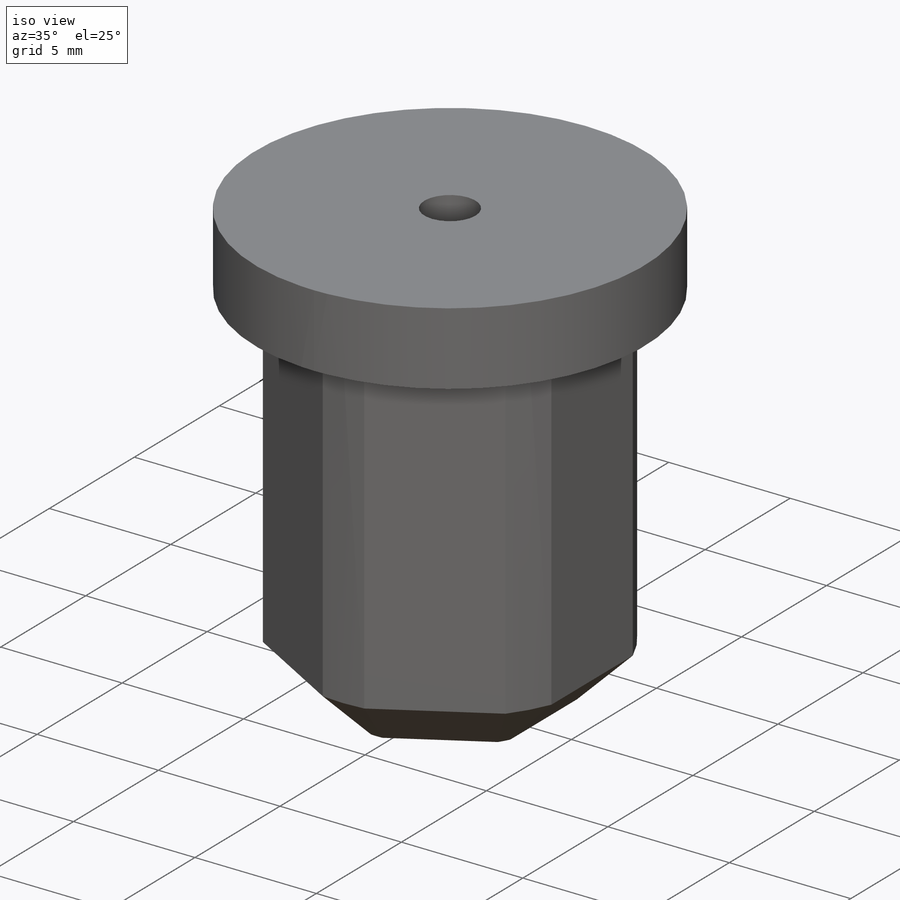
[diagram: iso view]
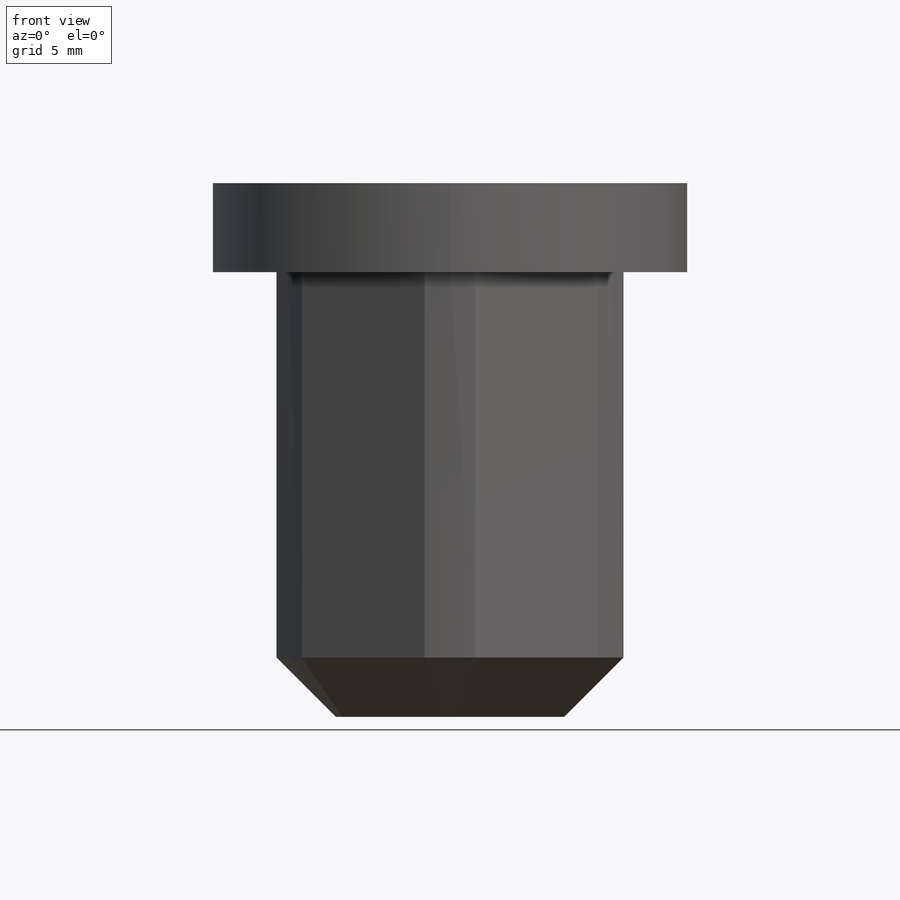
[diagram: front view]
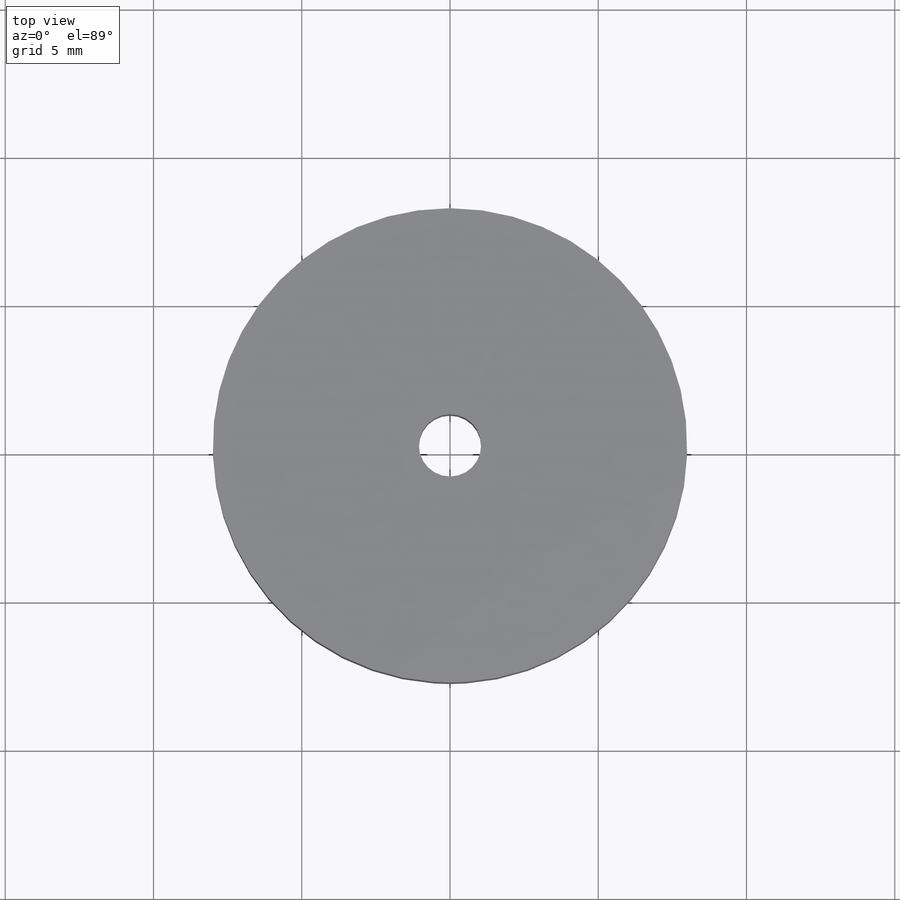
[diagram: top view]
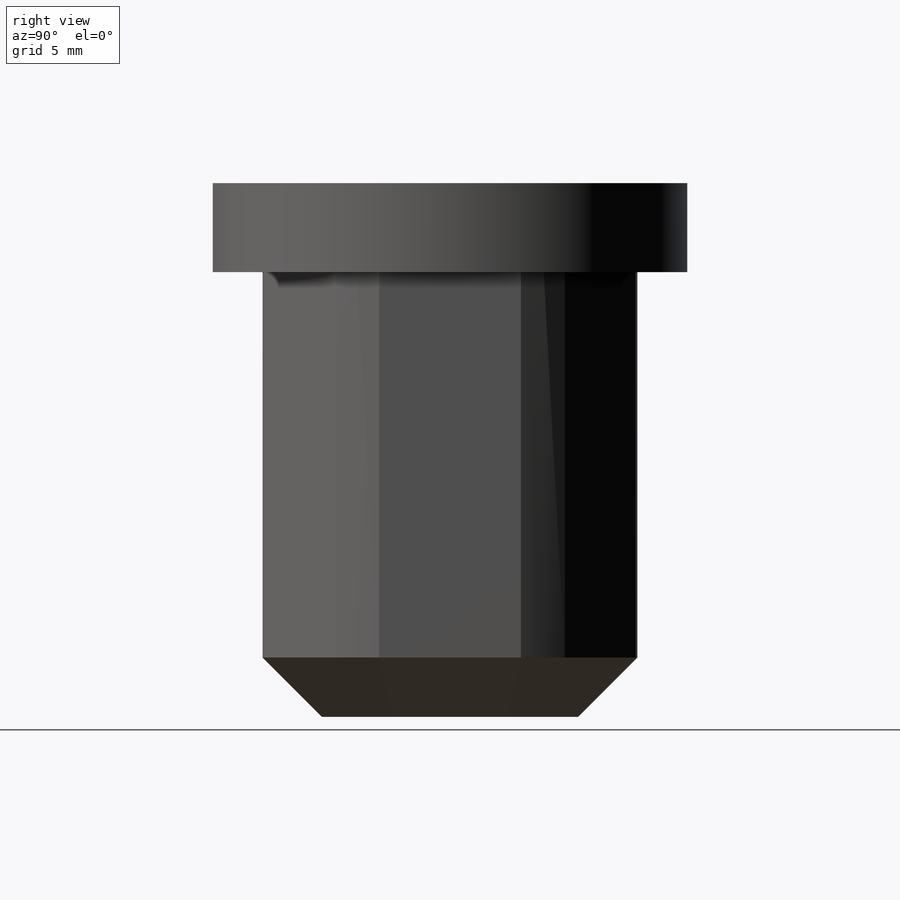
[diagram: right view]
SOLIDWORKS PART (.sldprt)
format: sldprt  version: not decoded by parser v0  size: 204,288 bytes
history: native  units: mm
features: sketch x4, extrude x2, cut_extrude x2, material x1, chamfer x1 (+13 scaffold rows collapsed)
feature tree (23):
  scaffold x13  (default folders/planes/origin — collapsed)
  material  "Material <not specified>"
  sketch  "Sketch1"  dims[D1=16.0mm]
  extrude  "Boss-Extrude1"  Depth=3mm
  sketch  "Sketch9"  dims[D1=12.64mm D2=11.7mm]
  extrude  "Boss-Extrude2"  Depth=15mm
  chamfer  "Chamfer1"  Distance=2mm Angle=45deg
  sketch  "Sketch10"  dims[D1=5.0mm]
  cut_extrude  "Cut-Extrude1"  [1 undecoded]
  sketch  "Sketch11"  dims[D1=0.5mm]
  cut_extrude  "Cut-Extrude3"  [1 undecoded]
decode coverage: 7 of 9 modeling features carry decoded parameters
note: 2 parameter values undecoded
note: suppression state not decoded; provenance and decode notes live in map.json
